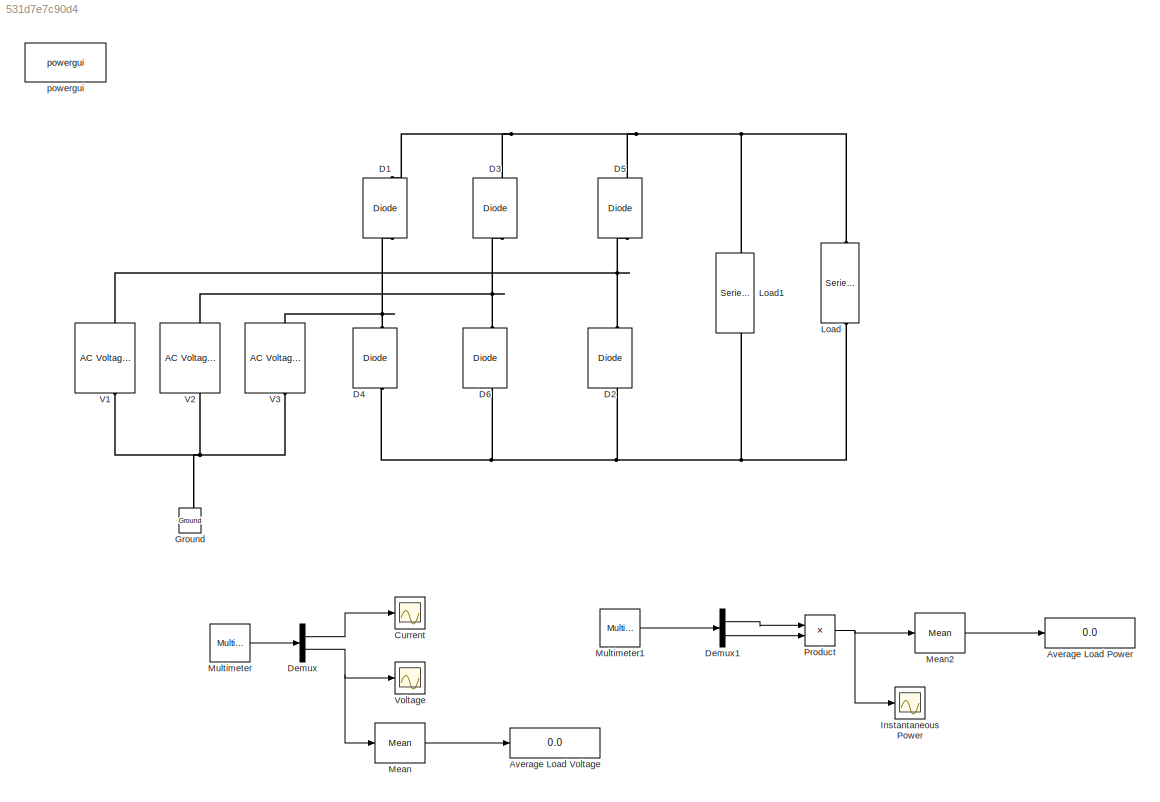
MODEL slx_531d7e7c90d4
KIND model
CONFIG AbsTol = auto
CONFIG EnableMultiTasking = off
CONFIG FixedStep = auto
CONFIG MaxStep = auto
CONFIG MinStep = auto
CONFIG RelTol = 1e-3
CONFIG SampleTimeConstraint = Unconstrained
CONFIG SolverName = VariableStepAuto
CONFIG StartTime = 0.0
CONFIG StopTime = 1
BLOCK [Display] Average Load Power
  Decimation = 1
BLOCK [Display] Average Load Voltage
  Decimation = 1
BLOCK [Scope] Current
  Floating = off
  NumInputPorts = 1
  ScopeSpecificationString = Simulink.scopes.TimeScopeBlockCfg('CurrentConfiguration', extmgr.ConfigurationSet(extmgr.Configuration('Core','General UI',true),extmgr.Configuration('Core','Source UI',true),extmgr.Configuration('Sources','WiredSimulink',true),extmgr.Configuration('Visuals','Time Domain',true,'SerializedDisplays',{struct('MinYLimReal','461.43151','MaxYLimReal','538.1667','YLabelReal','','MinYLimMag','461.43151','...<+1445ch>
BLOCK [Reference] D1  REF=spsDiodeLib/Diode
  LibrarySourceBlock = sps_lib/Power Electronics/Diode
  NameLocation = right
  SourceBlock = spsDiodeLib/Diode
  SourceType = Diode
BLOCK [Reference] D2  REF=spsDiodeLib/Diode
  LibrarySourceBlock = sps_lib/Power Electronics/Diode
  NameLocation = right
  SourceBlock = spsDiodeLib/Diode
  SourceType = Diode
BLOCK [Reference] D3  REF=spsDiodeLib/Diode
  LibrarySourceBlock = sps_lib/Power Electronics/Diode
  NameLocation = right
  SourceBlock = spsDiodeLib/Diode
  SourceType = Diode
BLOCK [Reference] D4  REF=spsDiodeLib/Diode
  LibrarySourceBlock = sps_lib/Power Electronics/Diode
  NameLocation = right
  SourceBlock = spsDiodeLib/Diode
  SourceType = Diode
BLOCK [Reference] D5  REF=spsDiodeLib/Diode
  LibrarySourceBlock = sps_lib/Power Electronics/Diode
  NameLocation = right
  SourceBlock = spsDiodeLib/Diode
  SourceType = Diode
BLOCK [Reference] D6  REF=spsDiodeLib/Diode
  LibrarySourceBlock = sps_lib/Power Electronics/Diode
  NameLocation = right
  SourceBlock = spsDiodeLib/Diode
  SourceType = Diode
BLOCK [Demux] Demux
  Outputs = 2
BLOCK [Demux] Demux1
  Outputs = 2
BLOCK [Reference] Ground  REF=spsGroundLib/Ground
  LibrarySourceBlock = sps_lib/Utilities/Ground
  NameLocation = right
  SourceBlock = spsGroundLib/Ground
  SourceType = Ground
BLOCK [Scope] Instantaneous Power
  Floating = off
  NumInputPorts = 1
  ScopeSpecificationString = Simulink.scopes.TimeScopeBlockCfg('CurrentConfiguration', extmgr.ConfigurationSet(extmgr.Configuration('Core','General UI',true),extmgr.Configuration('Core','Source UI',true),extmgr.Configuration('Sources','WiredSimulink',true,'DataLoggingVariableName','ScopeData2'),extmgr.Configuration('Visuals','Time Domain',true,'SerializedDisplays',{struct('MinYLimReal','21449.85574','MaxYLimReal','29166.61895...<+1504ch>
BLOCK [Reference] Load  REF=spsSeriesRLCBranchLib/Series RLC Branch
  LibrarySourceBlock = sps_lib/Passives/Series RLC Branch
  NameLocation = left
  SourceBlock = spsSeriesRLCBranchLib/Series RLC Branch
  SourceType = Series RLC Branch
BLOCK [Reference] Load1  REF=spsSeriesRLCBranchLib/Series RLC Branch
  Commented = on
  LibrarySourceBlock = sps_lib/Passives/Series RLC Branch
  NameLocation = left
  SourceBlock = spsSeriesRLCBranchLib/Series RLC Branch
  SourceType = Series RLC Branch
BLOCK [Reference] Mean  REF=spsMeanLib/Mean
  LibrarySourceBlock = sps_lib/Sensors and Measurements/Mean
  SourceBlock = spsMeanLib/Mean
  SourceType = Mean
BLOCK [Reference] Mean2  REF=spsMeanLib/Mean
  LibrarySourceBlock = sps_lib/Sensors and Measurements/Mean
  SourceBlock = spsMeanLib/Mean
  SourceType = Mean
BLOCK [Reference] Multimeter  REF=spsMultimeterLib/Multimeter
  LibrarySourceBlock = sps_lib/Sensors and Measurements/Multimeter
  SourceBlock = spsMultimeterLib/Multimeter
  SourceType = Multimeter
BLOCK [Reference] Multimeter1  REF=spsMultimeterLib/Multimeter
  LibrarySourceBlock = sps_lib/Sensors and Measurements/Multimeter
  SourceBlock = spsMultimeterLib/Multimeter
  SourceType = Multimeter
BLOCK [Product] Product
BLOCK [Reference] V1  REF=spsACVoltageSourceLib/AC Voltage Source
  LibrarySourceBlock = sps_lib/Sources/AC Voltage Source
  SourceBlock = spsACVoltageSourceLib/AC Voltage Source
  SourceType = AC Voltage Source
BLOCK [Reference] V2  REF=spsACVoltageSourceLib/AC Voltage Source
  LibrarySourceBlock = sps_lib/Sources/AC Voltage Source
  SourceBlock = spsACVoltageSourceLib/AC Voltage Source
  SourceType = AC Voltage Source
BLOCK [Reference] V3  REF=spsACVoltageSourceLib/AC Voltage Source
  LibrarySourceBlock = sps_lib/Sources/AC Voltage Source
  SourceBlock = spsACVoltageSourceLib/AC Voltage Source
  SourceType = AC Voltage Source
BLOCK [Scope] Voltage
  Floating = off
  NumInputPorts = 1
  ScopeSpecificationString = Simulink.scopes.TimeScopeBlockCfg('CurrentConfiguration', extmgr.ConfigurationSet(extmgr.Configuration('Core','General UI',true),extmgr.Configuration('Core','Source UI',true),extmgr.Configuration('Sources','WiredSimulink',true,'DataLoggingVariableName','ScopeData1'),extmgr.Configuration('Visuals','Time Domain',true,'SerializedDisplays',{struct('MinYLimReal','46.22554','MaxYLimReal','53.8453','YLab...<+1531ch>
BLOCK [Reference] powergui  REF=sps_lib/powergui
  LibrarySourceBlock = sps_lib/powergui
  Priority = 1
  SourceBlock = sps_lib/powergui
  SourceType = PSB option menu block
LINE Demux1:1 -> Product:1
LINE Demux1:2 -> Product:2
LINE Demux:1 -> Current:1
NET Demux:2 -> Mean:1, Voltage:1
LINE Mean2:1 -> Average Load Power:1
LINE Mean:1 -> Average Load Voltage:1
LINE Multimeter1:1 -> Demux1:1
LINE Multimeter:1 -> Demux:1
NET Product:1 -> Instantaneous Power:1, Mean2:1
PNET net1: D1:LConn1 -- D4:RConn1 -- V3:RConn1
PNET net2: D1:RConn1 -- D3:RConn1 -- D5:RConn1 -- Load1:LConn1 -- Load:LConn1
PNET net3: D2:LConn1 -- D4:LConn1 -- D6:LConn1 -- Load1:RConn1 -- Load:RConn1
PNET net4: D2:RConn1 -- D5:LConn1 -- V1:RConn1
PNET net5: D3:LConn1 -- D6:RConn1 -- V2:RConn1
PNET net6: Ground:LConn1 -- V1:LConn1 -- V2:LConn1 -- V3:LConn1
note: NET lines group one-source signal fan-out (src -> all destinations, sorted); 1:1 wires keep LINE; PNET lines group multi-terminal physical nets as a canonical sorted terminal list (undirected conserving connections); 2-terminal nets keep the pairwise PLINE form
